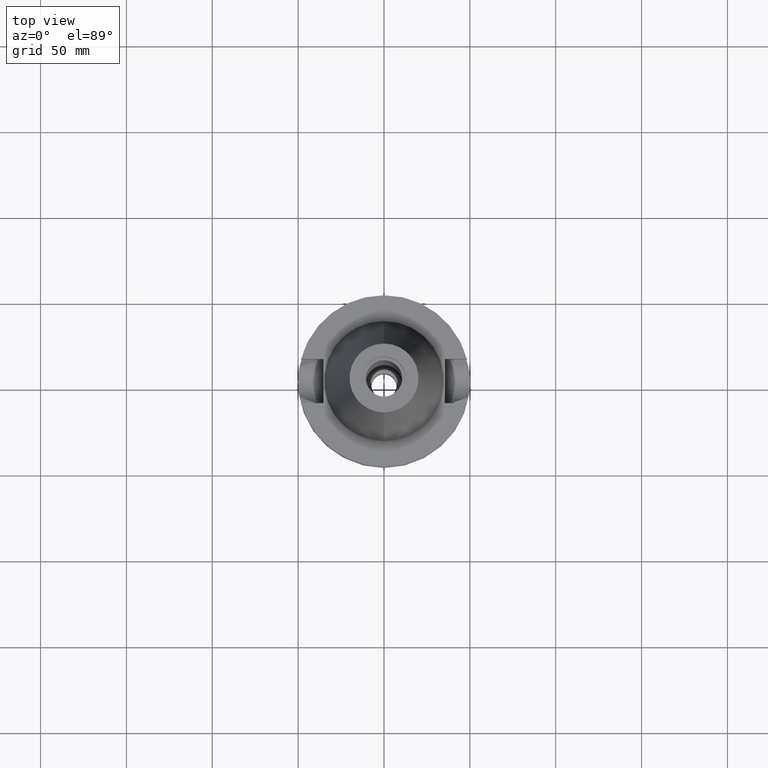
[diagram: clean part render]
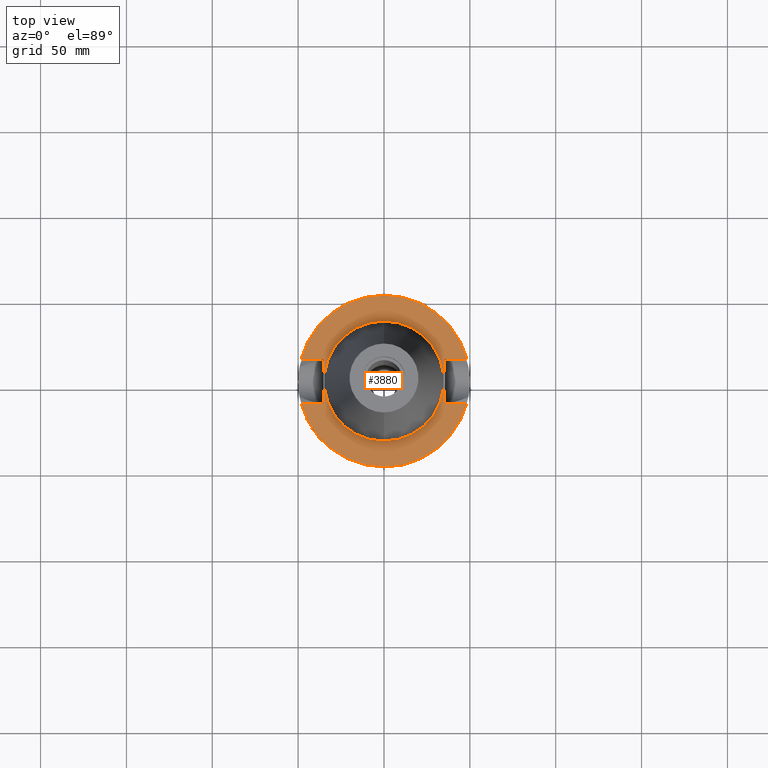
[diagram: same view with one face highlighted and labeled with its STEP entity id]
A machine part, top view. The second image highlights one B-rep face of the part: STEP entity #3880.
In plain terms, the highlighted planar face has unit normal (0, 0, -1).
Its self-contained STEP definition (entity closure, byte-faithful):
#1625=DIRECTION('',(1.E0,0.E0,0.E0));
#1626=VECTOR('',#1625,1.292057015392E1);
#1627=CARTESIAN_POINT('',(3.54E1,1.285E1,-1.5E0));
#1628=LINE('',#1627,#1626);
#1672=DIRECTION('',(0.E0,1.E0,0.E0));
#1673=VECTOR('',#1672,2.57E1);
#1674=CARTESIAN_POINT('',(-3.54E1,-1.285E1,-1.5E0));
#1675=LINE('',#1674,#1673);
#1679=DIRECTION('',(-1.E0,0.E0,0.E0));
#1680=VECTOR('',#1679,1.292057015392E1);
#1681=CARTESIAN_POINT('',(-3.54E1,1.285E1,-1.5E0));
#1682=LINE('',#1681,#1680);
#1686=CARTESIAN_POINT('',(0.E0,2.717368782628E-14,-1.5E0));
#1687=DIRECTION('',(0.E0,0.E0,-1.E0));
#1688=DIRECTION('',(-9.664114030784E-1,2.57E-1,0.E0));
#1689=AXIS2_PLACEMENT_3D('',#1686,#1687,#1688);
#1694=CARTESIAN_POINT('',(0.E0,2.717368782628E-14,-1.5E0));
#1695=DIRECTION('',(0.E0,0.E0,-1.E0));
#1696=DIRECTION('',(0.E0,1.E0,0.E0));
#1697=AXIS2_PLACEMENT_3D('',#1694,#1695,#1696);
#1702=DIRECTION('',(0.E0,-1.E0,0.E0));
#1703=VECTOR('',#1702,2.57E1);
#1704=CARTESIAN_POINT('',(3.54E1,1.285E1,-1.5E0));
#1705=LINE('',#1704,#1703);
#1709=DIRECTION('',(1.E0,0.E0,0.E0));
#1710=VECTOR('',#1709,1.292057015392E1);
#1711=CARTESIAN_POINT('',(3.54E1,-1.285E1,-1.5E0));
#1712=LINE('',#1711,#1710);
#1716=CARTESIAN_POINT('',(0.E0,2.717368782628E-14,-1.5E0));
#1717=DIRECTION('',(0.E0,0.E0,-1.E0));
#1718=DIRECTION('',(9.664114030784E-1,-2.57E-1,0.E0));
#1719=AXIS2_PLACEMENT_3D('',#1716,#1717,#1718);
#1724=CARTESIAN_POINT('',(0.E0,2.717368782628E-14,-1.5E0));
#1725=DIRECTION('',(0.E0,0.E0,-1.E0));
#1726=DIRECTION('',(0.E0,-1.E0,0.E0));
#1727=AXIS2_PLACEMENT_3D('',#1724,#1725,#1726);
#1732=CARTESIAN_POINT('',(0.E0,2.717368782628E-14,-1.5E0));
#1733=DIRECTION('',(0.E0,0.E0,1.E0));
#1734=DIRECTION('',(0.E0,-1.E0,0.E0));
#1735=AXIS2_PLACEMENT_3D('',#1732,#1733,#1734);
#1740=CARTESIAN_POINT('',(0.E0,2.717368782628E-14,-1.5E0));
#1741=DIRECTION('',(0.E0,0.E0,1.E0));
#1742=DIRECTION('',(0.E0,1.E0,0.E0));
#1743=AXIS2_PLACEMENT_3D('',#1740,#1741,#1742);
#1778=DIRECTION('',(-1.E0,0.E0,0.E0));
#1779=VECTOR('',#1778,1.292057015392E1);
#1780=CARTESIAN_POINT('',(-3.54E1,-1.285E1,-1.5E0));
#1781=LINE('',#1780,#1779);
#2696=CARTESIAN_POINT('',(-3.54E1,-1.285E1,-1.5E0));
#2697=VERTEX_POINT('',#2696);
#2698=CARTESIAN_POINT('',(-4.832057015392E1,-1.285E1,-1.5E0));
#2699=VERTEX_POINT('',#2698);
#2702=CARTESIAN_POINT('',(-3.54E1,1.285E1,-1.5E0));
#2703=VERTEX_POINT('',#2702);
#2704=CARTESIAN_POINT('',(-4.832057015392E1,1.285E1,-1.5E0));
#2705=VERTEX_POINT('',#2704);
#2706=CARTESIAN_POINT('',(-1.065814103640E-14,5.E1,-1.5E0));
#2707=CARTESIAN_POINT('',(4.832057015392E1,1.285E1,-1.5E0));
#2708=VERTEX_POINT('',#2706);
#2709=VERTEX_POINT('',#2707);
#2710=CARTESIAN_POINT('',(3.54E1,1.285E1,-1.5E0));
#2711=VERTEX_POINT('',#2710);
#2712=CARTESIAN_POINT('',(3.54E1,-1.285E1,-1.5E0));
#2713=VERTEX_POINT('',#2712);
#2714=CARTESIAN_POINT('',(4.832057015392E1,-1.285E1,-1.5E0));
#2715=VERTEX_POINT('',#2714);
#2716=CARTESIAN_POINT('',(1.065814103640E-14,-5.E1,-1.5E0));
#2717=VERTEX_POINT('',#2716);
#2718=CARTESIAN_POINT('',(0.E0,-3.4925E1,-1.5E0));
#2719=CARTESIAN_POINT('',(0.E0,3.4925E1,-1.5E0));
#2720=VERTEX_POINT('',#2718);
#2721=VERTEX_POINT('',#2719);
#3849=CARTESIAN_POINT('',(0.E0,1.206277097160E-14,-1.5E0));
#3850=DIRECTION('',(0.E0,0.E0,-1.E0));
#3851=DIRECTION('',(0.E0,-1.E0,0.E0));
#3852=AXIS2_PLACEMENT_3D('',#3849,#3850,#3851);
#3853=PLANE('',#3852);
#3855=ORIENTED_EDGE('',*,*,#3854,.T.);
#3857=ORIENTED_EDGE('',*,*,#3856,.T.);
#3859=ORIENTED_EDGE('',*,*,#3858,.T.);
#3861=ORIENTED_EDGE('',*,*,#3860,.T.);
#3862=ORIENTED_EDGE('',*,*,#3825,.F.);
#3863=ORIENTED_EDGE('',*,*,#3839,.T.);
#3865=ORIENTED_EDGE('',*,*,#3864,.T.);
#3867=ORIENTED_EDGE('',*,*,#3866,.T.);
#3869=ORIENTED_EDGE('',*,*,#3868,.T.);
#3871=ORIENTED_EDGE('',*,*,#3870,.F.);
#3872=EDGE_LOOP('',(#3855,#3857,#3859,#3861,#3862,#3863,#3865,#3867,#3869,
#3871));
#3873=FACE_OUTER_BOUND('',#3872,.F.);
#3875=ORIENTED_EDGE('',*,*,#3874,.T.);
#3877=ORIENTED_EDGE('',*,*,#3876,.T.);
#3878=EDGE_LOOP('',(#3875,#3877));
#3879=FACE_BOUND('',#3878,.F.);
#1690=CIRCLE('',#1689,5.E1);
#1698=CIRCLE('',#1697,5.E1);
#1720=CIRCLE('',#1719,5.E1);
#1728=CIRCLE('',#1727,5.E1);
#1736=CIRCLE('',#1735,3.4925E1);
#1744=CIRCLE('',#1743,3.4925E1);
#3825=EDGE_CURVE('',#2711,#2709,#1628,.T.);
#3839=EDGE_CURVE('',#2711,#2713,#1705,.T.);
#3854=EDGE_CURVE('',#2697,#2703,#1675,.T.);
#3856=EDGE_CURVE('',#2703,#2705,#1682,.T.);
#3858=EDGE_CURVE('',#2705,#2708,#1690,.T.);
#3860=EDGE_CURVE('',#2708,#2709,#1698,.T.);
#3864=EDGE_CURVE('',#2713,#2715,#1712,.T.);
#3866=EDGE_CURVE('',#2715,#2717,#1720,.T.);
#3868=EDGE_CURVE('',#2717,#2699,#1728,.T.);
#3870=EDGE_CURVE('',#2697,#2699,#1781,.T.);
#3874=EDGE_CURVE('',#2720,#2721,#1736,.T.);
#3876=EDGE_CURVE('',#2721,#2720,#1744,.T.);
#3880=ADVANCED_FACE('',(#3873,#3879),#3853,.F.);